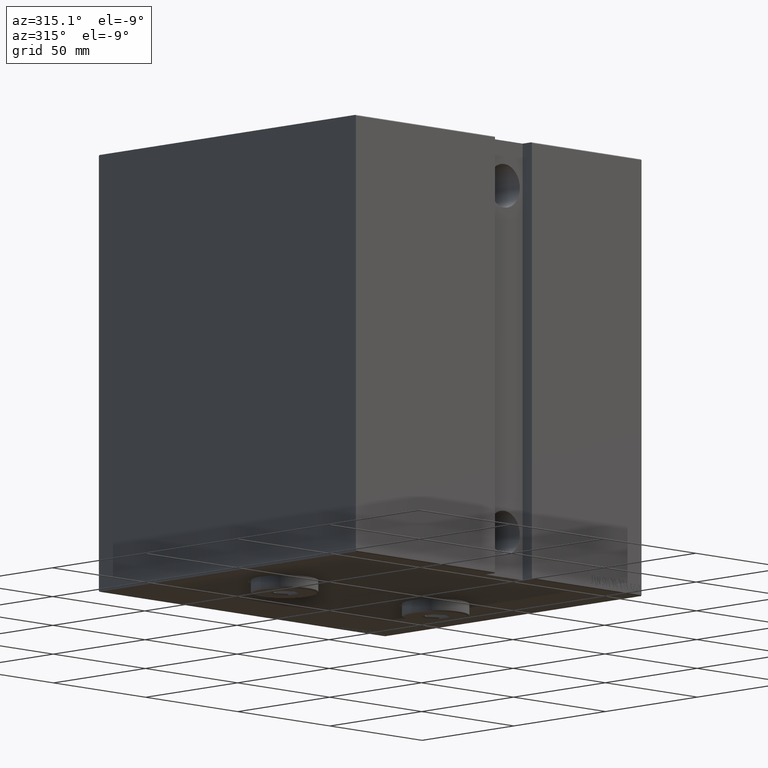
[diagram: clean part render]
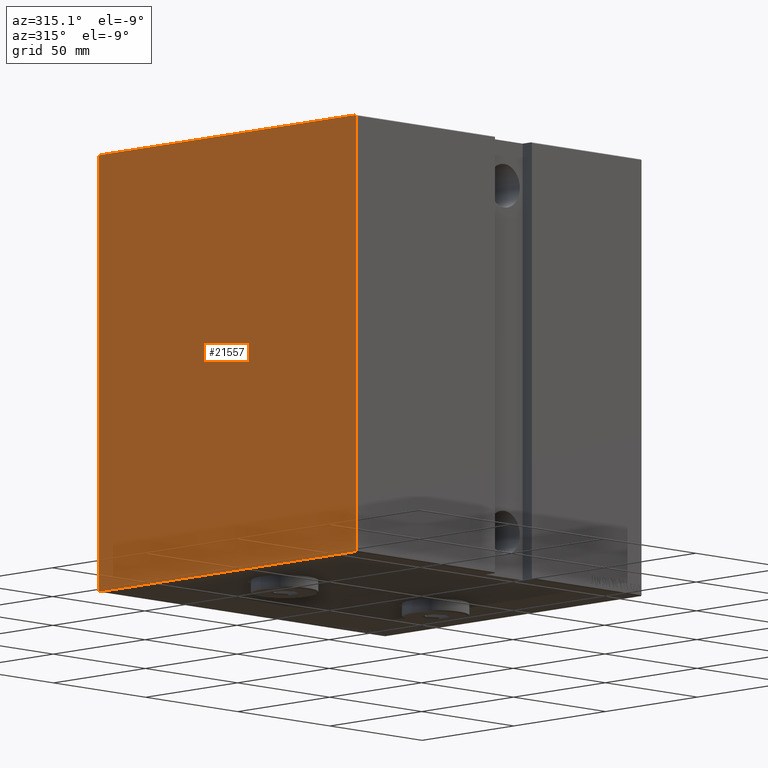
[diagram: same view with one face highlighted and labeled with its STEP entity id]
A machine part, auxiliary view. The second image highlights one B-rep face of the part: STEP entity #21557.
In plain terms, the highlighted planar face has unit normal (-1, 0, 0).
Its self-contained STEP definition (entity closure, byte-faithful):
#1035 = CARTESIAN_POINT ( 'NONE',  ( 155.0000000000000000, -69.99999999999998579, 85.00000000000000000 ) ) ;
#1099 = EDGE_CURVE ( 'NONE', #2783, #25028, #1699, .T. ) ;
#1699 = LINE ( 'NONE', #1035, #8506 ) ;
#1852 = CARTESIAN_POINT ( 'NONE',  ( 155.0000000000000000, -69.99999999999998579, -84.69999999999998863 ) ) ;
#1929 = CARTESIAN_POINT ( 'NONE',  ( 155.0000000000000000, 70.00000000000002842, -84.70000000000001705 ) ) ;
#2074 = EDGE_CURVE ( 'NONE', #36376, #23277, #10551, .T. ) ;
#2783 = VERTEX_POINT ( 'NONE', #30323 ) ;
#3437 = CARTESIAN_POINT ( 'NONE',  ( 155.0000000000000000, 70.00000000000002842, 85.00000000000001421 ) ) ;
#3805 = EDGE_LOOP ( 'NONE', ( #35599, #25711, #20913, #20428, #11973, #21394, #4742, #22227 ) ) ;
#4742 = ORIENTED_EDGE ( 'NONE', *, *, #1099, .T. ) ;
#7007 = CARTESIAN_POINT ( 'NONE',  ( 155.0000000000000000, 77.34999999999517684, -77.35000000000590603 ) ) ;
#7369 = LINE ( 'NONE', #20962, #11923 ) ;
#7496 = CARTESIAN_POINT ( 'NONE',  ( 155.0000000000000000, 69.70000000000007390, 85.00000000000001421 ) ) ;
#8022 = DIRECTION ( 'NONE',  ( -0.000000000000000000, -0.7071067811865638930, 0.7071067811865312525 ) ) ;
#8506 = VECTOR ( 'NONE', #35783, 1000.000000000000000 ) ;
#8741 = VERTEX_POINT ( 'NONE', #23713 ) ;
#9688 = EDGE_CURVE ( 'NONE', #28787, #28705, #34199, .T. ) ;
#9710 = AXIS2_PLACEMENT_3D ( 'NONE', #30535, #26975, #30752 ) ;
#10111 = VECTOR ( 'NONE', #32694, 1000.000000000000000 ) ;
#10238 = EDGE_CURVE ( 'NONE', #23277, #8741, #12355, .T. ) ;
#10460 = DIRECTION ( 'NONE',  ( -0.000000000000000000, -0.7071067811865638930, -0.7071067811865311414 ) ) ;
#10533 = EDGE_CURVE ( 'NONE', #25028, #18142, #30113, .T. ) ;
#10551 = LINE ( 'NONE', #7007, #22037 ) ;
#10908 = LINE ( 'NONE', #24984, #33275 ) ;
#11291 = EDGE_CURVE ( 'NONE', #18142, #36376, #24419, .T. ) ;
#11923 = VECTOR ( 'NONE', #10460, 1000.000000000000000 ) ;
#11973 = ORIENTED_EDGE ( 'NONE', *, *, #9688, .T. ) ;
#12355 = LINE ( 'NONE', #30003, #10111 ) ;
#14385 = CARTESIAN_POINT ( 'NONE',  ( 155.0000000000000000, -69.70000000000000284, -85.00000000000000000 ) ) ;
#15178 = VECTOR ( 'NONE', #28620, 1000.000000000000000 ) ;
#17147 = PLANE ( 'NONE',  #9710 ) ;
#18142 = VERTEX_POINT ( 'NONE', #14385 ) ;
#20409 = CARTESIAN_POINT ( 'NONE',  ( 155.0000000000000000, -69.99999999999998579, -85.00000000000000000 ) ) ;
#20428 = ORIENTED_EDGE ( 'NONE', *, *, #34089, .T. ) ;
#20603 = DIRECTION ( 'NONE',  ( -0.000000000000000000, 0.7071067811865965336, 0.7071067811864985009 ) ) ;
#20913 = ORIENTED_EDGE ( 'NONE', *, *, #10238, .T. ) ;
#20962 = CARTESIAN_POINT ( 'NONE',  ( 155.0000000000000000, -77.34999999999840270, 77.35000000000198384 ) ) ;
#21394 = ORIENTED_EDGE ( 'NONE', *, *, #27493, .T. ) ;
#21557 = ADVANCED_FACE ( 'NONE', ( #33875 ), #17147, .T. ) ;
#22037 = VECTOR ( 'NONE', #20603, 1000.000000000000114 ) ;
#22227 = ORIENTED_EDGE ( 'NONE', *, *, #10533, .T. ) ;
#23277 = VERTEX_POINT ( 'NONE', #1929 ) ;
#23713 = CARTESIAN_POINT ( 'NONE',  ( 155.0000000000000000, 70.00000000000002842, 84.70000000000007390 ) ) ;
#24396 = VECTOR ( 'NONE', #34017, 1000.000000000000000 ) ;
#24419 = LINE ( 'NONE', #20409, #24396 ) ;
#24984 = CARTESIAN_POINT ( 'NONE',  ( 155.0000000000000000, 77.34999999999841691, 77.35000000000199805 ) ) ;
#25028 = VERTEX_POINT ( 'NONE', #1852 ) ;
#25711 = ORIENTED_EDGE ( 'NONE', *, *, #2074, .T. ) ;
#26505 = VECTOR ( 'NONE', #43690, 999.9999999999998863 ) ;
#26975 = DIRECTION ( 'NONE',  ( 1.000000000000000000, 0.000000000000000000, -0.000000000000000000 ) ) ;
#27493 = EDGE_CURVE ( 'NONE', #28705, #2783, #7369, .T. ) ;
#28620 = DIRECTION ( 'NONE',  ( 0.000000000000000000, -1.000000000000000000, -9.912705577010325549E-17 ) ) ;
#28705 = VERTEX_POINT ( 'NONE', #35400 ) ;
#28787 = VERTEX_POINT ( 'NONE', #7496 ) ;
#29673 = CARTESIAN_POINT ( 'NONE',  ( 155.0000000000000000, -77.35000000000322018, -77.34999999999607212 ) ) ;
#30003 = CARTESIAN_POINT ( 'NONE',  ( 155.0000000000000000, 70.00000000000002842, -85.00000000000000000 ) ) ;
#30113 = LINE ( 'NONE', #29673, #26505 ) ;
#30323 = CARTESIAN_POINT ( 'NONE',  ( 155.0000000000000000, -69.99999999999998579, 84.70000000000004547 ) ) ;
#30535 = CARTESIAN_POINT ( 'NONE',  ( 155.0000000000000000, 0.000000000000000000, 0.000000000000000000 ) ) ;
#30752 = DIRECTION ( 'NONE',  ( -0.000000000000000000, 0.000000000000000000, -1.000000000000000000 ) ) ;
#32694 = DIRECTION ( 'NONE',  ( 0.000000000000000000, 0.000000000000000000, 1.000000000000000000 ) ) ;
#33275 = VECTOR ( 'NONE', #8022, 1000.000000000000114 ) ;
#33875 = FACE_OUTER_BOUND ( 'NONE', #3805, .T. ) ;
#34017 = DIRECTION ( 'NONE',  ( 0.000000000000000000, 1.000000000000000000, 0.000000000000000000 ) ) ;
#34089 = EDGE_CURVE ( 'NONE', #8741, #28787, #10908, .T. ) ;
#34199 = LINE ( 'NONE', #3437, #15178 ) ;
#35400 = CARTESIAN_POINT ( 'NONE',  ( 155.0000000000000000, -69.70000000000001705, 85.00000000000000000 ) ) ;
#35599 = ORIENTED_EDGE ( 'NONE', *, *, #11291, .T. ) ;
#35783 = DIRECTION ( 'NONE',  ( 0.000000000000000000, 0.000000000000000000, -1.000000000000000000 ) ) ;
#36376 = VERTEX_POINT ( 'NONE', #37864 ) ;
#37864 = CARTESIAN_POINT ( 'NONE',  ( 155.0000000000000000, 69.70000000000000284, -85.00000000000000000 ) ) ;
#43690 = DIRECTION ( 'NONE',  ( -0.000000000000000000, 0.7071067811865149322, -0.7071067811865802133 ) ) ;